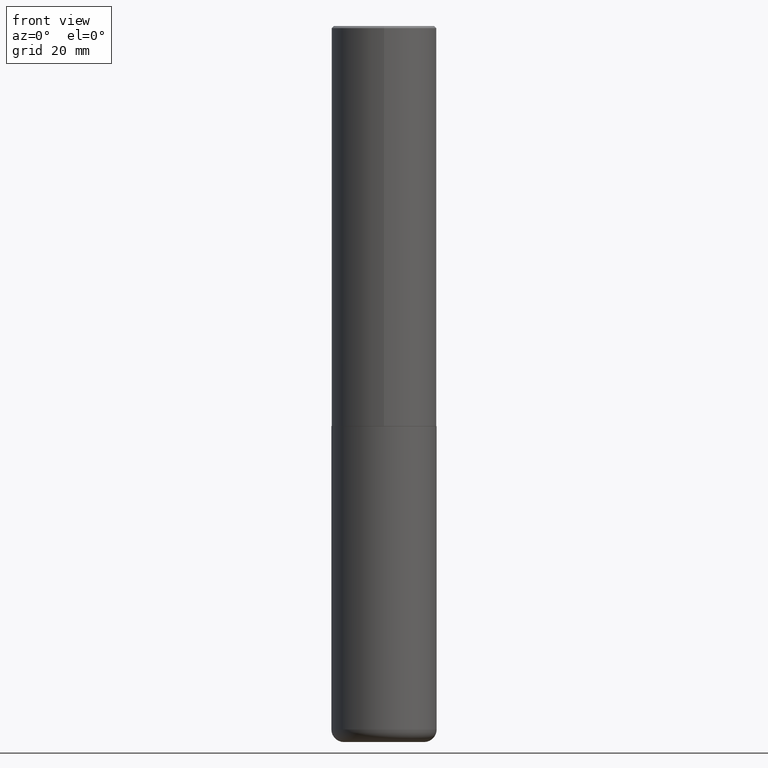
[diagram: clean part render]
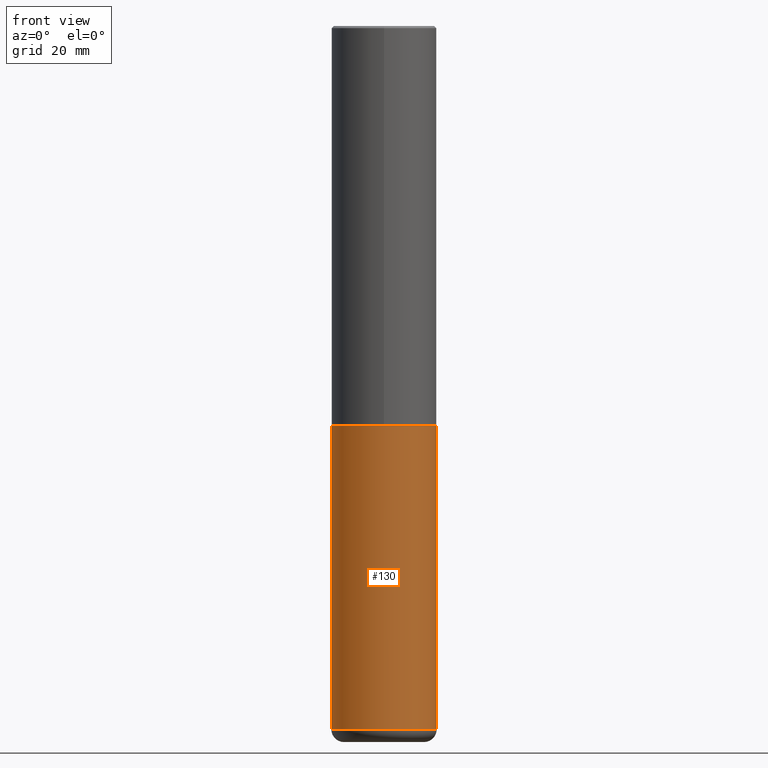
[diagram: same view with one face highlighted and labeled with its STEP entity id]
A machine part, front view. The second image highlights one B-rep face of the part: STEP entity #130.
In plain terms, the highlighted cylindrical surface (partial cylindrical patch) has radius 12.5006 mm, axis along (-0, 0, 1).
Its self-contained STEP definition (entity closure, byte-faithful):
#2 = CARTESIAN_POINT ( 'NONE',  ( 1.607846830690603466E-28, -2.295579150662591525E-14, -6.574799999999999756 ) ) ;
#8 = EDGE_CURVE ( 'NONE', #330, #132, #64, .T. ) ;
#16 = LINE ( 'NONE', #143, #161 ) ;
#23 = EDGE_LOOP ( 'NONE', ( #211, #81, #202, #304 ) ) ;
#26 = CARTESIAN_POINT ( 'NONE',  ( -0.4921499999999999764, 3.496936074043332897E-15, -2.420853904668951509E-29 ) ) ;
#64 = LINE ( 'NONE', #26, #92 ) ;
#78 = EDGE_CURVE ( 'NONE', #132, #160, #387, .T. ) ;
#81 = ORIENTED_EDGE ( 'NONE', *, *, #389, .T. ) ;
#92 = VECTOR ( 'NONE', #149, 39.37007874015748143 ) ;
#101 = CARTESIAN_POINT ( 'NONE',  ( 0.000000000000000000, 0.000000000000000000, 0.000000000000000000 ) ) ;
#115 = DIRECTION ( 'NONE',  ( -2.445468806185136597E-29, 3.491481338843145583E-15, 1.000000000000000000 ) ) ;
#130 = ADVANCED_FACE ( 'NONE', ( #279 ), #399, .T. ) ;
#132 = VERTEX_POINT ( 'NONE', #201 ) ;
#143 = CARTESIAN_POINT ( 'NONE',  ( 0.4921499999999999764, -3.436665081823295777E-15, 2.399810400207969603E-29 ) ) ;
#146 = EDGE_CURVE ( 'NONE', #284, #160, #16, .T. ) ;
#149 = DIRECTION ( 'NONE',  ( -2.445468806185136877E-29, 3.491481338843145188E-15, 1.000000000000000000 ) ) ;
#160 = VERTEX_POINT ( 'NONE', #172 ) ;
#161 = VECTOR ( 'NONE', #278, 39.37007874015748143 ) ;
#172 = CARTESIAN_POINT ( 'NONE',  ( 0.4921499999999999764, -1.649515443723054663E-14, -3.740100000000000424 ) ) ;
#177 = DIRECTION ( 'NONE',  ( 1.000000000000000000, -6.982962677686265922E-15, 0.000000000000000000 ) ) ;
#201 = CARTESIAN_POINT ( 'NONE',  ( -0.4921499999999999764, -1.451020435697325173E-14, -3.740100000000000424 ) ) ;
#202 = ORIENTED_EDGE ( 'NONE', *, *, #146, .T. ) ;
#208 = DIRECTION ( 'NONE',  ( 1.000000000000000000, -6.982962677686265922E-15, 4.876176775795935793E-29 ) ) ;
#211 = ORIENTED_EDGE ( 'NONE', *, *, #8, .F. ) ;
#213 = CIRCLE ( 'NONE', #287, 0.4921500000000000319 ) ;
#228 = CARTESIAN_POINT ( 'NONE',  ( 9.146297882013029477E-29, -1.305848935540725085E-14, -3.740100000000000424 ) ) ;
#278 = DIRECTION ( 'NONE',  ( -2.445468806185136877E-29, 3.491481338843145188E-15, 1.000000000000000000 ) ) ;
#279 = FACE_OUTER_BOUND ( 'NONE', #23, .T. ) ;
#284 = VERTEX_POINT ( 'NONE', #406 ) ;
#287 = AXIS2_PLACEMENT_3D ( 'NONE', #2, #416, #296 ) ;
#296 = DIRECTION ( 'NONE',  ( 1.000000000000000000, -6.982962677686265133E-15, 0.000000000000000000 ) ) ;
#304 = ORIENTED_EDGE ( 'NONE', *, *, #78, .F. ) ;
#318 = CARTESIAN_POINT ( 'NONE',  ( -0.4921499999999999764, -1.945885543258258157E-14, -6.574799999999999756 ) ) ;
#330 = VERTEX_POINT ( 'NONE', #318 ) ;
#331 = AXIS2_PLACEMENT_3D ( 'NONE', #228, #115, #177 ) ;
#367 = DIRECTION ( 'NONE',  ( -2.445468806185136597E-29, 3.491481338843145583E-15, 1.000000000000000000 ) ) ;
#387 = CIRCLE ( 'NONE', #331, 0.4921499999999999764 ) ;
#389 = EDGE_CURVE ( 'NONE', #330, #284, #213, .T. ) ;
#399 = CYLINDRICAL_SURFACE ( 'NONE', #418, 0.4921499999999999764 ) ;
#406 = CARTESIAN_POINT ( 'NONE',  ( 0.4921499999999999764, -2.639245658844920945E-14, -6.574799999999999756 ) ) ;
#416 = DIRECTION ( 'NONE',  ( -2.445468806185136597E-29, 3.491481338843145583E-15, 1.000000000000000000 ) ) ;
#418 = AXIS2_PLACEMENT_3D ( 'NONE', #101, #367, #208 ) ;